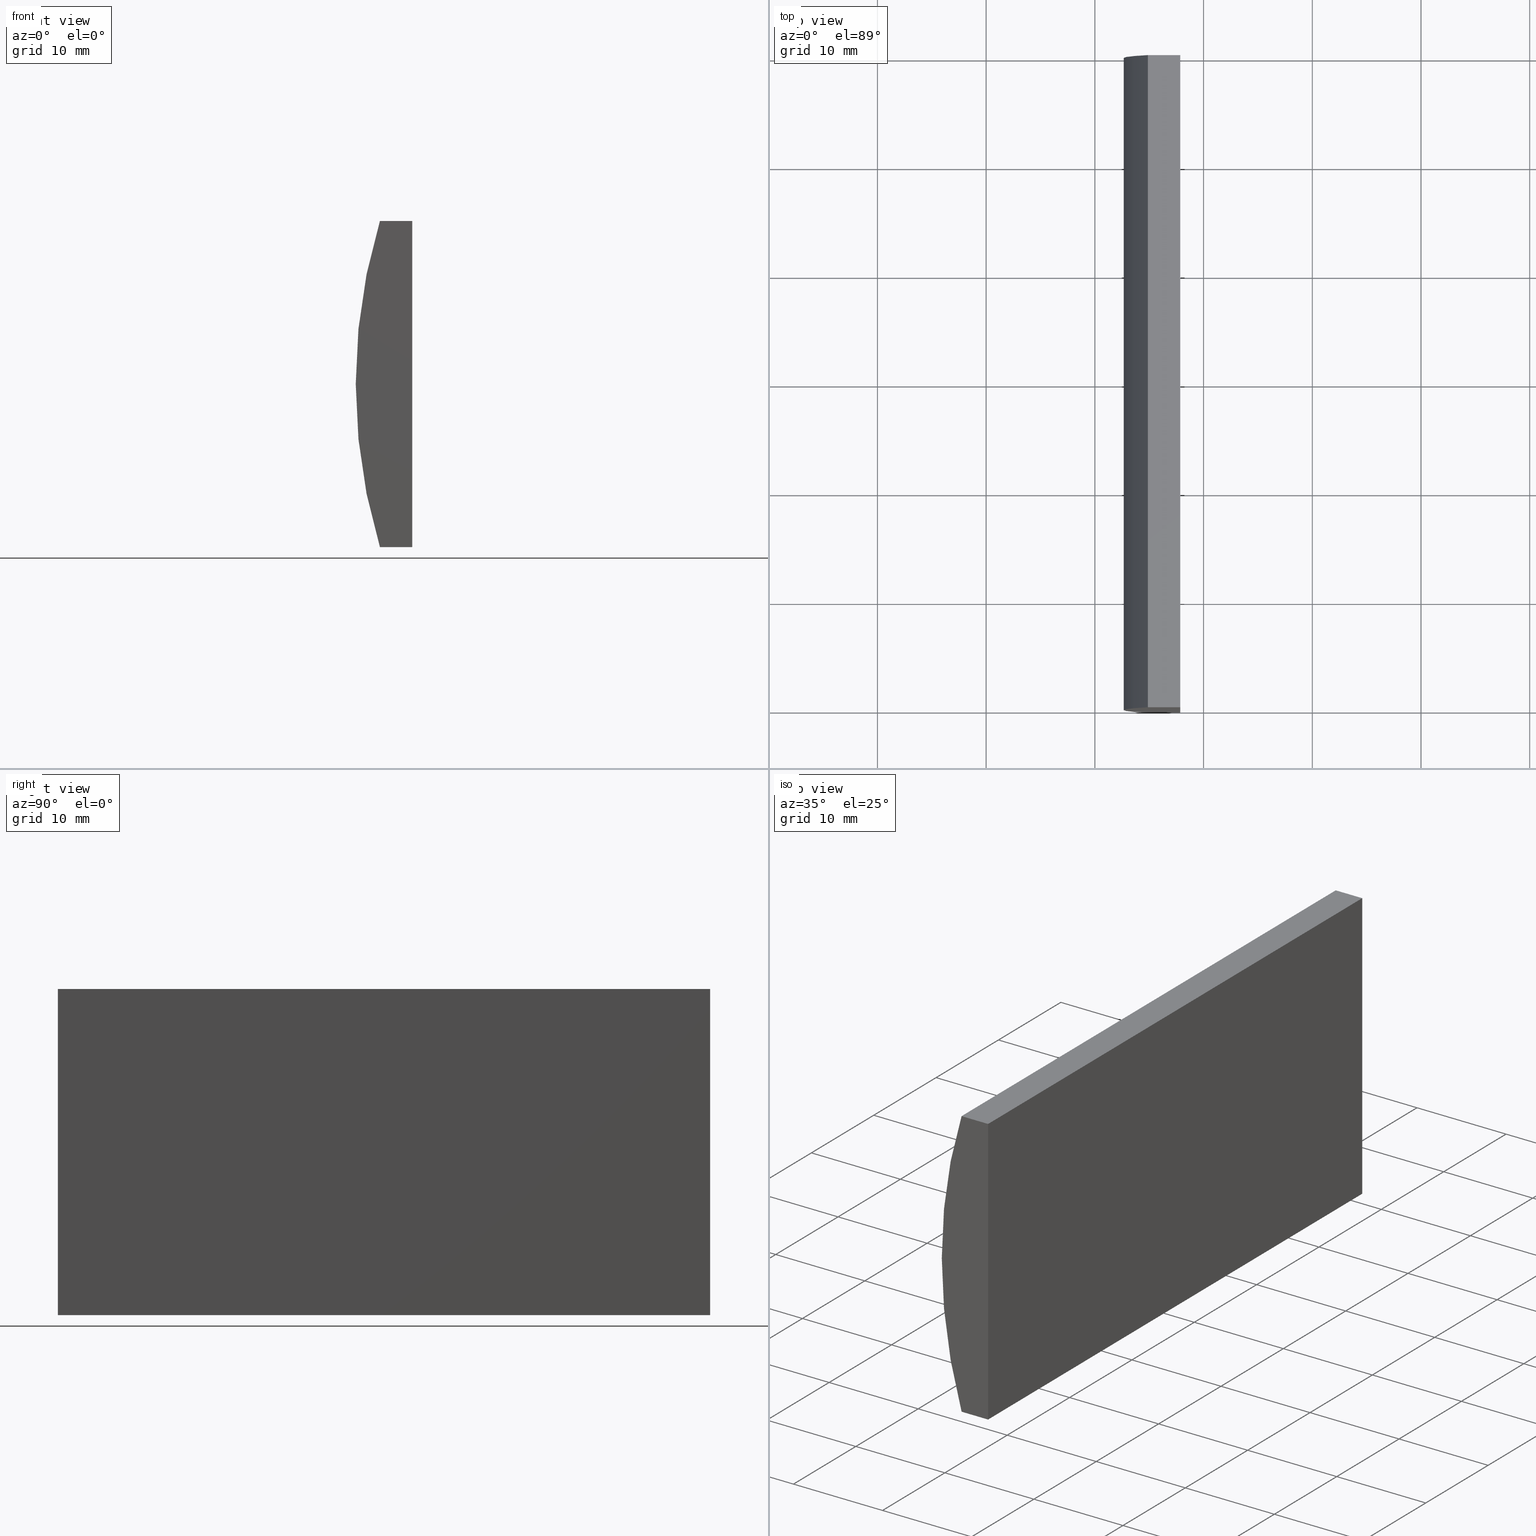
[diagram: canonical four-view strip — front | top / right | iso, engineering-drawing reading convention]
A machine part, canonical four-view strip (front | top / right | iso — engineering-drawing reading convention). The complete STEP part file that produces these views, byte-faithful:
ISO-10303-21;
HEADER;
FILE_DESCRIPTION (( 'STEP AP214' ),
    '1' );
FILE_NAME ('155059.STEP',
    '2019-06-18T07:44:09',
    ( 'user' ),
    ( '΢���й�' ),
    'SwSTEP 2.0',
    'SolidWorks 2016',
    '' );
FILE_SCHEMA (( 'AUTOMOTIVE_DESIGN' ));
ENDSEC;

DATA;
#1 = DIRECTION ( 'NONE',  ( -1.000000000000000000, -0.0000000000000000000, -5.828738647508747700E-015 ) ) ;
#2 = ORIENTED_EDGE ( 'NONE', *, *, #151, .T. ) ;
#3 = DIRECTION ( 'NONE',  ( -1.000000000000000000, 0.0000000000000000000, 2.312964634635744400E-016 ) ) ;
#4 = CARTESIAN_POINT ( 'NONE',  ( -45.12095153845805100, 0.0000000000000000000, -15.00000000000000000 ) ) ;
#5 = SURFACE_STYLE_FILL_AREA ( #101 ) ;
#6 = VERTEX_POINT ( 'NONE', #4 ) ;
#7 = ORIENTED_EDGE ( 'NONE', *, *, #119, .T. ) ;
#8 = EDGE_LOOP ( 'NONE', ( #54, #148, #63, #176 ) ) ;
#9 = PRODUCT ( '155059', '155059', '', ( #157 ) ) ;
#10 = APPLICATION_CONTEXT ( 'automotive_design' ) ;
#11 = FILL_AREA_STYLE_COLOUR ( '', #204 ) ;
#12 = AXIS2_PLACEMENT_3D ( 'NONE', #68, #102, #48 ) ;
#13 = VECTOR ( 'NONE', #174, 1000.000000000000000 ) ;
#14 = SURFACE_STYLE_USAGE ( .BOTH. , #135 ) ;
#15 = FACE_OUTER_BOUND ( 'NONE', #192, .T. ) ;
#16 = LINE ( 'NONE', #202, #131 ) ;
#17 = DIRECTION ( 'NONE',  ( 1.000000000000000000, 0.0000000000000000000, 0.0000000000000000000 ) ) ;
#18 = CARTESIAN_POINT ( 'NONE',  ( -42.14479566514874200, 60.00000000000000000, 15.00000000000000000 ) ) ;
#19 = MECHANICAL_DESIGN_GEOMETRIC_PRESENTATION_REPRESENTATION (  '', ( #191 ), #92 ) ;
#20 = ADVANCED_FACE ( 'NONE', ( #106 ), #163, .F. ) ;
#21 = CARTESIAN_POINT ( 'NONE',  ( -45.12095153845805100, 60.00000000000000000, -15.00000000000000000 ) ) ;
#22 = VECTOR ( 'NONE', #149, 1000.000000000000000 ) ;
#23 = AXIS2_PLACEMENT_3D ( 'NONE', #181, #3, #180 ) ;
#24 = EDGE_CURVE ( 'NONE', #194, #37, #166, .T. ) ;
#25 = ORIENTED_EDGE ( 'NONE', *, *, #44, .F. ) ;
#26 =( LENGTH_UNIT ( ) NAMED_UNIT ( * ) SI_UNIT ( .MILLI., .METRE. ) );
#27 = SURFACE_STYLE_FILL_AREA ( #43 ) ;
#28 = FILL_AREA_STYLE_COLOUR ( '', #64 ) ;
#29 = EDGE_LOOP ( 'NONE', ( #67, #62, #93, #7 ) ) ;
#30 = EDGE_CURVE ( 'NONE', #99, #6, #182, .T. ) ;
#31 =( NAMED_UNIT ( * ) SI_UNIT ( $, .STERADIAN. ) SOLID_ANGLE_UNIT ( ) );
#32 = CARTESIAN_POINT ( 'NONE',  ( 0.0000000000000000000, 0.0000000000000000000, 0.0000000000000000000 ) ) ;
#33 = EDGE_CURVE ( 'NONE', #6, #125, #79, .T. ) ;
#34 = DIRECTION ( 'NONE',  ( -1.000000000000000000, 0.0000000000000000000, -0.0000000000000000000 ) ) ;
#35 = LINE ( 'NONE', #65, #61 ) ;
#36 = PRESENTATION_LAYER_ASSIGNMENT (  '', '', ( #191 ) ) ;
#37 = VERTEX_POINT ( 'NONE', #97 ) ;
#38 =( NAMED_UNIT ( * ) SI_UNIT ( $, .STERADIAN. ) SOLID_ANGLE_UNIT ( ) );
#39 = EDGE_CURVE ( 'NONE', #203, #160, #143, .T. ) ;
#40 = LINE ( 'NONE', #184, #22 ) ;
#41 = ORIENTED_EDGE ( 'NONE', *, *, #158, .T. ) ;
#42 = UNCERTAINTY_MEASURE_WITH_UNIT (LENGTH_MEASURE( 1.000000000000000100E-005 ), #152, 'distance_accuracy_value', 'NONE');
#43 = FILL_AREA_STYLE ('',( #11 ) ) ;
#44 = EDGE_CURVE ( 'NONE', #160, #194, #89, .T. ) ;
#45 = DIRECTION ( 'NONE',  ( 0.0000000000000000000, 0.0000000000000000000, -1.000000000000000000 ) ) ;
#46 = STYLED_ITEM ( 'NONE', ( #200 ), #121 ) ;
#47 = CLOSED_SHELL ( 'NONE', ( #133, #140, #20, #104, #171, #190 ) ) ;
#48 = DIRECTION ( 'NONE',  ( 0.0000000000000000000, 0.0000000000000000000, 1.000000000000000000 ) ) ;
#49 = ORIENTED_EDGE ( 'NONE', *, *, #24, .T. ) ;
#50 = PLANE ( 'NONE',  #129 ) ;
#51 = ORIENTED_EDGE ( 'NONE', *, *, #44, .T. ) ;
#52 = DIRECTION ( 'NONE',  ( 0.0000000000000000000, 0.0000000000000000000, 1.000000000000000000 ) ) ;
#53 = ORIENTED_EDGE ( 'NONE', *, *, #151, .F. ) ;
#54 = ORIENTED_EDGE ( 'NONE', *, *, #30, .T. ) ;
#55 = VECTOR ( 'NONE', #175, 1000.000000000000000 ) ;
#56 = CARTESIAN_POINT ( 'NONE',  ( -45.12095153845805100, 60.00000000000000000, 15.00000000000000000 ) ) ;
#57 = PRODUCT_DEFINITION ( 'δ֪', '', #71, #137 ) ;
#58 = ORIENTED_EDGE ( 'NONE', *, *, #33, .F. ) ;
#59 = PRODUCT_DEFINITION_SHAPE ( 'NONE', 'NONE',  #57 ) ;
#60 = ORIENTED_EDGE ( 'NONE', *, *, #95, .T. ) ;
#61 = VECTOR ( 'NONE', #84, 1000.000000000000000 ) ;
#62 = ORIENTED_EDGE ( 'NONE', *, *, #95, .F. ) ;
#63 = ORIENTED_EDGE ( 'NONE', *, *, #24, .F. ) ;
#64 = COLOUR_RGB ( '',1.000000000000000000, 1.000000000000000000, 1.000000000000000000 ) ;
#65 = CARTESIAN_POINT ( 'NONE',  ( -42.14479566514874900, 60.00000000000000000, -14.99999999999998200 ) ) ;
#66 = PLANE ( 'NONE',  #170 ) ;
#67 = ORIENTED_EDGE ( 'NONE', *, *, #33, .T. ) ;
#68 = CARTESIAN_POINT ( 'NONE',  ( 4.355204334851265500, 60.00000000000000000, 4.286263797015675000E-017 ) ) ;
#69 = CARTESIAN_POINT ( 'NONE',  ( -45.12095153845805100, 60.00000000000000000, -15.00000000000000000 ) ) ;
#70 = CARTESIAN_POINT ( 'NONE',  ( -42.14479566514874900, 60.00000000000000000, -14.99999999999998200 ) ) ;
#71 = PRODUCT_DEFINITION_FORMATION_WITH_SPECIFIED_SOURCE ( '�κ�', '', #9, .NOT_KNOWN. ) ;
#72 = PRESENTATION_LAYER_ASSIGNMENT (  '', '', ( #46 ) ) ;
#73 = CIRCLE ( 'NONE', #12, 51.69999999999999600 ) ;
#74 = SHAPE_DEFINITION_REPRESENTATION ( #59, #121 ) ;
#75 = EDGE_CURVE ( 'NONE', #37, #203, #73, .T. ) ;
#76 =( LENGTH_UNIT ( ) NAMED_UNIT ( * ) SI_UNIT ( .MILLI., .METRE. ) );
#77 = MECHANICAL_DESIGN_GEOMETRIC_PRESENTATION_REPRESENTATION (  '', ( #46 ), #146 ) ;
#78 = UNCERTAINTY_MEASURE_WITH_UNIT (LENGTH_MEASURE( 1.000000000000000100E-005 ), #76, 'distance_accuracy_value', 'NONE');
#79 = CIRCLE ( 'NONE', #111, 51.69999999999999600 ) ;
#80 = VECTOR ( 'NONE', #1, 1000.000000000000000 ) ;
#81 = ORIENTED_EDGE ( 'NONE', *, *, #158, .F. ) ;
#82 = AXIS2_PLACEMENT_3D ( 'NONE', #69, #98, #113 ) ;
#83 = FACE_OUTER_BOUND ( 'NONE', #8, .T. ) ;
#84 = DIRECTION ( 'NONE',  ( -0.0000000000000000000, -1.000000000000000000, -0.0000000000000000000 ) ) ;
#85 = AXIS2_PLACEMENT_3D ( 'NONE', #142, #130, #162 ) ;
#86 = UNCERTAINTY_MEASURE_WITH_UNIT (LENGTH_MEASURE( 1.000000000000000100E-005 ), #26, 'distance_accuracy_value', 'NONE');
#87 = CARTESIAN_POINT ( 'NONE',  ( -42.14479566514874900, 0.0000000000000000000, -14.99999999999998200 ) ) ;
#88 = VERTEX_POINT ( 'NONE', #114 ) ;
#89 = LINE ( 'NONE', #70, #112 ) ;
#90 = DIRECTION ( 'NONE',  ( 0.0000000000000000000, 0.0000000000000000000, 1.000000000000000000 ) ) ;
#91 = VECTOR ( 'NONE', #17, 1000.000000000000000 ) ;
#92 =( GEOMETRIC_REPRESENTATION_CONTEXT ( 3 ) GLOBAL_UNCERTAINTY_ASSIGNED_CONTEXT ( ( #86 ) ) GLOBAL_UNIT_ASSIGNED_CONTEXT ( ( #26, #138, #38 ) ) REPRESENTATION_CONTEXT ( 'NONE', 'WORKASPACE' ) );
#93 = ORIENTED_EDGE ( 'NONE', *, *, #75, .F. ) ;
#94 =( NAMED_UNIT ( * ) PLANE_ANGLE_UNIT ( ) SI_UNIT ( $, .RADIAN. ) );
#95 = EDGE_CURVE ( 'NONE', #203, #125, #105, .T. ) ;
#96 = ORIENTED_EDGE ( 'NONE', *, *, #39, .T. ) ;
#97 = CARTESIAN_POINT ( 'NONE',  ( -45.12095153845805100, 60.00000000000000000, -15.00000000000000000 ) ) ;
#98 = DIRECTION ( 'NONE',  ( -5.828738647508747700E-015, 0.0000000000000000000, 1.000000000000000000 ) ) ;
#99 = VERTEX_POINT ( 'NONE', #153 ) ;
#100 = ORIENTED_EDGE ( 'NONE', *, *, #30, .F. ) ;
#101 = FILL_AREA_STYLE ('',( #28 ) ) ;
#102 = DIRECTION ( 'NONE',  ( 0.0000000000000000000, 1.000000000000000000, 0.0000000000000000000 ) ) ;
#103 = EDGE_CURVE ( 'NONE', #194, #99, #35, .T. ) ;
#104 = ADVANCED_FACE ( 'NONE', ( #83 ), #145, .F. ) ;
#105 = LINE ( 'NONE', #199, #150 ) ;
#106 = FACE_OUTER_BOUND ( 'NONE', #164, .T. ) ;
#107 = AXIS2_PLACEMENT_3D ( 'NONE', #115, #109, #45 ) ;
#108 = DIRECTION ( 'NONE',  ( 0.0000000000000000000, 1.000000000000000000, 0.0000000000000000000 ) ) ;
#109 = DIRECTION ( 'NONE',  ( -0.0000000000000000000, -1.000000000000000000, -0.0000000000000000000 ) ) ;
#110 = APPLICATION_CONTEXT ( 'automotive_design' ) ;
#111 = AXIS2_PLACEMENT_3D ( 'NONE', #126, #128, #90 ) ;
#112 = VECTOR ( 'NONE', #141, 1000.000000000000000 ) ;
#113 = DIRECTION ( 'NONE',  ( 1.000000000000000000, 0.0000000000000000000, 5.828738647508747700E-015 ) ) ;
#114 = CARTESIAN_POINT ( 'NONE',  ( -42.14479566514874200, 0.0000000000000000000, 15.00000000000000000 ) ) ;
#115 = CARTESIAN_POINT ( 'NONE',  ( 4.355204334851265500, 60.00000000000000000, 4.286263797015675000E-017 ) ) ;
#116 = SURFACE_STYLE_USAGE ( .BOTH. , #177 ) ;
#117 = DIRECTION ( 'NONE',  ( 1.000000000000000000, 0.0000000000000000000, 0.0000000000000000000 ) ) ;
#118 = CARTESIAN_POINT ( 'NONE',  ( 4.355204334851265500, 60.00000000000000000, 4.286263797015675000E-017 ) ) ;
#119 = EDGE_CURVE ( 'NONE', #37, #6, #165, .T. ) ;
#120 = APPLICATION_PROTOCOL_DEFINITION ( 'draft international standard', 'automotive_design', 1998, #10 ) ;
#121 = ADVANCED_BREP_SHAPE_REPRESENTATION ( '155059', ( #168, #167 ), #195 ) ;
#122 = DIRECTION ( 'NONE',  ( -0.0000000000000000000, -1.000000000000000000, -0.0000000000000000000 ) ) ;
#123 = DIRECTION ( 'NONE',  ( -0.0000000000000000000, -1.000000000000000000, -0.0000000000000000000 ) ) ;
#124 =( NAMED_UNIT ( * ) PLANE_ANGLE_UNIT ( ) SI_UNIT ( $, .RADIAN. ) );
#125 = VERTEX_POINT ( 'NONE', #198 ) ;
#126 = CARTESIAN_POINT ( 'NONE',  ( 4.355204334851265500, 0.0000000000000000000, 4.286263797015675000E-017 ) ) ;
#127 = FACE_OUTER_BOUND ( 'NONE', #188, .T. ) ;
#128 = DIRECTION ( 'NONE',  ( 0.0000000000000000000, 1.000000000000000000, 0.0000000000000000000 ) ) ;
#129 = AXIS2_PLACEMENT_3D ( 'NONE', #183, #144, #34 ) ;
#130 = DIRECTION ( 'NONE',  ( 0.0000000000000000000, 1.000000000000000000, 0.0000000000000000000 ) ) ;
#131 = VECTOR ( 'NONE', #123, 1000.000000000000000 ) ;
#132 = VECTOR ( 'NONE', #185, 1000.000000000000000 ) ;
#133 = ADVANCED_FACE ( 'NONE', ( #134 ), #201, .T. ) ;
#134 = FACE_OUTER_BOUND ( 'NONE', #29, .T. ) ;
#135 = SURFACE_SIDE_STYLE ('',( #5 ) ) ;
#136 = ORIENTED_EDGE ( 'NONE', *, *, #39, .F. ) ;
#137 = PRODUCT_DEFINITION_CONTEXT ( 'detailed design', #10, 'design' ) ;
#138 =( NAMED_UNIT ( * ) PLANE_ANGLE_UNIT ( ) SI_UNIT ( $, .RADIAN. ) );
#139 = CARTESIAN_POINT ( 'NONE',  ( -45.12095153845805100, 60.00000000000000000, -15.00000000000000000 ) ) ;
#140 = ADVANCED_FACE ( 'NONE', ( #127 ), #50, .F. ) ;
#141 = DIRECTION ( 'NONE',  ( -2.312964634635744400E-016, -0.0000000000000000000, -1.000000000000000000 ) ) ;
#142 = CARTESIAN_POINT ( 'NONE',  ( 4.355204334851265500, 0.0000000000000000000, 4.286263797015675000E-017 ) ) ;
#143 = LINE ( 'NONE', #56, #91 ) ;
#144 = DIRECTION ( 'NONE',  ( 0.0000000000000000000, 0.0000000000000000000, -1.000000000000000000 ) ) ;
#145 = PLANE ( 'NONE',  #82 ) ;
#146 =( GEOMETRIC_REPRESENTATION_CONTEXT ( 3 ) GLOBAL_UNCERTAINTY_ASSIGNED_CONTEXT ( ( #78 ) ) GLOBAL_UNIT_ASSIGNED_CONTEXT ( ( #76, #124, #31 ) ) REPRESENTATION_CONTEXT ( 'NONE', 'WORKASPACE' ) );
#147 = ORIENTED_EDGE ( 'NONE', *, *, #103, .F. ) ;
#148 = ORIENTED_EDGE ( 'NONE', *, *, #119, .F. ) ;
#149 = DIRECTION ( 'NONE',  ( 1.000000000000000000, 0.0000000000000000000, 0.0000000000000000000 ) ) ;
#150 = VECTOR ( 'NONE', #122, 1000.000000000000000 ) ;
#151 = EDGE_CURVE ( 'NONE', #125, #88, #40, .T. ) ;
#152 =( LENGTH_UNIT ( ) NAMED_UNIT ( * ) SI_UNIT ( .MILLI., .METRE. ) );
#153 = CARTESIAN_POINT ( 'NONE',  ( -42.14479566514874900, 0.0000000000000000000, -14.99999999999998200 ) ) ;
#154 = PRODUCT_RELATED_PRODUCT_CATEGORY ( 'part', '', ( #9 ) ) ;
#155 = EDGE_LOOP ( 'NONE', ( #173, #96, #51, #49 ) ) ;
#156 = ORIENTED_EDGE ( 'NONE', *, *, #161, .T. ) ;
#157 = PRODUCT_CONTEXT ( 'NONE', #110, 'mechanical' ) ;
#158 = EDGE_CURVE ( 'NONE', #160, #88, #16, .T. ) ;
#159 =( NAMED_UNIT ( * ) SI_UNIT ( $, .STERADIAN. ) SOLID_ANGLE_UNIT ( ) );
#160 = VERTEX_POINT ( 'NONE', #18 ) ;
#161 = EDGE_CURVE ( 'NONE', #88, #99, #178, .T. ) ;
#162 = DIRECTION ( 'NONE',  ( 0.0000000000000000000, -0.0000000000000000000, 1.000000000000000000 ) ) ;
#163 = PLANE ( 'NONE',  #23 ) ;
#164 = EDGE_LOOP ( 'NONE', ( #156, #147, #25, #41 ) ) ;
#165 = LINE ( 'NONE', #21, #13 ) ;
#166 = LINE ( 'NONE', #139, #55 ) ;
#167 = AXIS2_PLACEMENT_3D ( 'NONE', #32, #52, #117 ) ;
#168 = MANIFOLD_SOLID_BREP ( '͹̨-����1', #47 ) ;
#169 = APPLICATION_PROTOCOL_DEFINITION ( 'draft international standard', 'automotive_design', 1998, #110 ) ;
#170 = AXIS2_PLACEMENT_3D ( 'NONE', #118, #108, #193 ) ;
#171 = ADVANCED_FACE ( 'NONE', ( #179 ), #66, .T. ) ;
#172 = ORIENTED_EDGE ( 'NONE', *, *, #161, .F. ) ;
#173 = ORIENTED_EDGE ( 'NONE', *, *, #75, .T. ) ;
#174 = DIRECTION ( 'NONE',  ( -0.0000000000000000000, -1.000000000000000000, -0.0000000000000000000 ) ) ;
#175 = DIRECTION ( 'NONE',  ( -1.000000000000000000, -0.0000000000000000000, -5.828738647508747700E-015 ) ) ;
#176 = ORIENTED_EDGE ( 'NONE', *, *, #103, .T. ) ;
#177 = SURFACE_SIDE_STYLE ('',( #27 ) ) ;
#178 = LINE ( 'NONE', #87, #132 ) ;
#179 = FACE_OUTER_BOUND ( 'NONE', #155, .T. ) ;
#180 = DIRECTION ( 'NONE',  ( 2.312964634635744400E-016, 0.0000000000000000000, 1.000000000000000000 ) ) ;
#181 = CARTESIAN_POINT ( 'NONE',  ( -42.14479566514874900, 60.00000000000000000, -14.99999999999998200 ) ) ;
#182 = LINE ( 'NONE', #187, #80 ) ;
#183 = CARTESIAN_POINT ( 'NONE',  ( -45.12095153845805100, 60.00000000000000000, 15.00000000000000000 ) ) ;
#184 = CARTESIAN_POINT ( 'NONE',  ( -45.12095153845805100, 0.0000000000000000000, 15.00000000000000000 ) ) ;
#185 = DIRECTION ( 'NONE',  ( -2.312964634635744400E-016, -0.0000000000000000000, -1.000000000000000000 ) ) ;
#186 = CARTESIAN_POINT ( 'NONE',  ( -45.12095153845805100, 60.00000000000000000, 15.00000000000000000 ) ) ;
#187 = CARTESIAN_POINT ( 'NONE',  ( -45.12095153845805100, 0.0000000000000000000, -15.00000000000000000 ) ) ;
#188 = EDGE_LOOP ( 'NONE', ( #2, #81, #136, #60 ) ) ;
#189 = CARTESIAN_POINT ( 'NONE',  ( -42.14479566514874900, 60.00000000000000000, -14.99999999999998200 ) ) ;
#190 = ADVANCED_FACE ( 'NONE', ( #15 ), #196, .F. ) ;
#191 = STYLED_ITEM ( 'NONE', ( #197 ), #168 ) ;
#192 = EDGE_LOOP ( 'NONE', ( #58, #100, #172, #53 ) ) ;
#193 = DIRECTION ( 'NONE',  ( 0.0000000000000000000, -0.0000000000000000000, 1.000000000000000000 ) ) ;
#194 = VERTEX_POINT ( 'NONE', #189 ) ;
#195 =( GEOMETRIC_REPRESENTATION_CONTEXT ( 3 ) GLOBAL_UNCERTAINTY_ASSIGNED_CONTEXT ( ( #42 ) ) GLOBAL_UNIT_ASSIGNED_CONTEXT ( ( #152, #94, #159 ) ) REPRESENTATION_CONTEXT ( 'NONE', 'WORKASPACE' ) );
#196 = PLANE ( 'NONE',  #85 ) ;
#197 = PRESENTATION_STYLE_ASSIGNMENT (( #14 ) ) ;
#198 = CARTESIAN_POINT ( 'NONE',  ( -45.12095153845805100, 0.0000000000000000000, 15.00000000000000000 ) ) ;
#199 = CARTESIAN_POINT ( 'NONE',  ( -45.12095153845805100, 60.00000000000000000, 15.00000000000000000 ) ) ;
#200 = PRESENTATION_STYLE_ASSIGNMENT (( #116 ) ) ;
#201 = CYLINDRICAL_SURFACE ( 'NONE', #107, 51.69999999999999600 ) ;
#202 = CARTESIAN_POINT ( 'NONE',  ( -42.14479566514874200, 60.00000000000000000, 15.00000000000000000 ) ) ;
#203 = VERTEX_POINT ( 'NONE', #186 ) ;
#204 = COLOUR_RGB ( '',1.000000000000000000, 1.000000000000000000, 1.000000000000000000 ) ;
ENDSEC;
END-ISO-10303-21;
